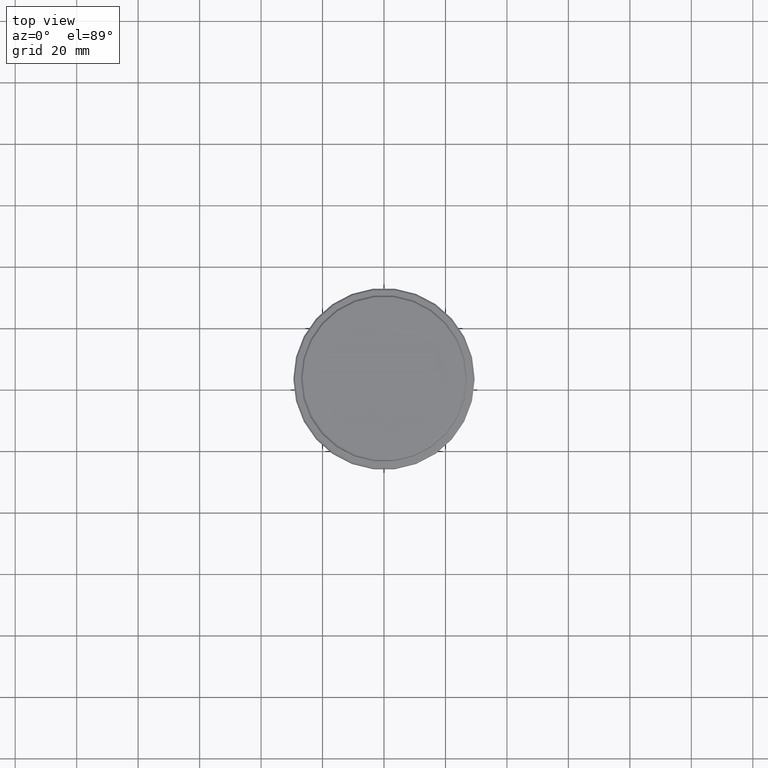
[diagram: clean part render]
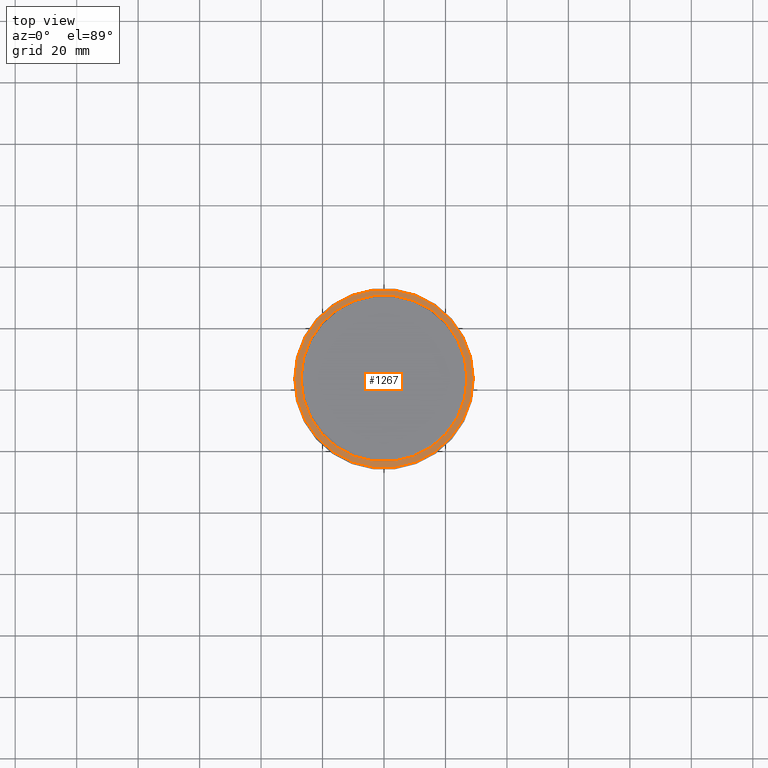
[diagram: same view with one face highlighted and labeled with its STEP entity id]
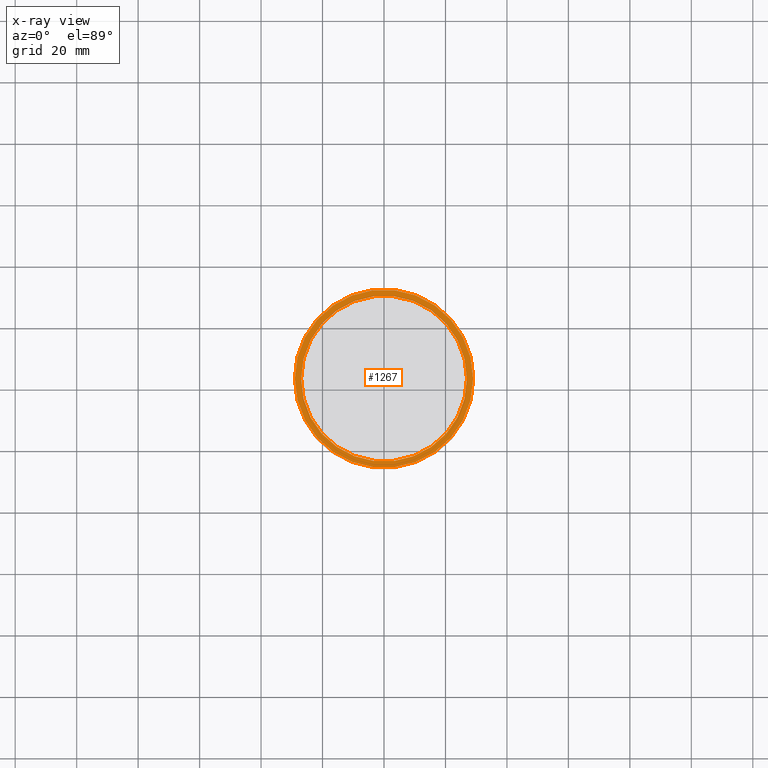
[diagram: x-ray of the same camera — body ghosted, the highlighted face saturated]
A machine part, top view. The second image highlights one B-rep face of the part: STEP entity #1267.
The next image is the same camera in x-ray: the body ghosted, the highlighted face saturated — about 0% of this face is hidden behind the body in this view.
In plain terms, the highlighted planar face has unit normal (0, -0, 1).
Its self-contained STEP definition (entity closure, byte-faithful):
#48 = EDGE_CURVE ( 'NONE', #1213, #739, #1127, .T. ) ;
#53 = CIRCLE ( 'NONE', #558, 28.99999999999999645 ) ;
#80 = DIRECTION ( 'NONE',  ( 0.000000000000000000, 0.000000000000000000, -1.000000000000000000 ) ) ;
#97 = CARTESIAN_POINT ( 'NONE',  ( 0.000000000000000000, 0.000000000000000000, -12.00000000000000355 ) ) ;
#141 = CARTESIAN_POINT ( 'NONE',  ( 0.000000000000000000, 26.49999999999999645, -12.00000000000000355 ) ) ;
#246 = CARTESIAN_POINT ( 'NONE',  ( 0.000000000000000000, 0.000000000000000000, -12.00000000000000355 ) ) ;
#313 = DIRECTION ( 'NONE',  ( 1.000000000000000000, 0.000000000000000000, 0.000000000000000000 ) ) ;
#339 = VERTEX_POINT ( 'NONE', #863 ) ;
#346 = CARTESIAN_POINT ( 'NONE',  ( 0.000000000000000000, 0.000000000000000000, -12.00000000000000355 ) ) ;
#447 = AXIS2_PLACEMENT_3D ( 'NONE', #141, #1111, #896 ) ;
#468 = PLANE ( 'NONE',  #447 ) ;
#475 = EDGE_CURVE ( 'NONE', #525, #339, #647, .T. ) ;
#525 = VERTEX_POINT ( 'NONE', #923 ) ;
#558 = AXIS2_PLACEMENT_3D ( 'NONE', #1345, #667, #1118 ) ;
#572 = DIRECTION ( 'NONE',  ( -0.000000000000000000, -0.000000000000000000, 1.000000000000000000 ) ) ;
#595 = ORIENTED_EDGE ( 'NONE', *, *, #1164, .T. ) ;
#647 = CIRCLE ( 'NONE', #1239, 28.99999999999999645 ) ;
#653 = ORIENTED_EDGE ( 'NONE', *, *, #475, .T. ) ;
#658 = FACE_BOUND ( 'NONE', #928, .T. ) ;
#667 = DIRECTION ( 'NONE',  ( -0.000000000000000000, -0.000000000000000000, 1.000000000000000000 ) ) ;
#739 = VERTEX_POINT ( 'NONE', #1165 ) ;
#823 = EDGE_CURVE ( 'NONE', #339, #525, #53, .T. ) ;
#860 = ORIENTED_EDGE ( 'NONE', *, *, #48, .T. ) ;
#863 = CARTESIAN_POINT ( 'NONE',  ( 28.99999999999999645, 3.582091887506007817E-15, -12.00000000000000355 ) ) ;
#883 = FACE_OUTER_BOUND ( 'NONE', #1073, .T. ) ;
#896 = DIRECTION ( 'NONE',  ( 1.000000000000000000, 0.000000000000000000, 0.000000000000000000 ) ) ;
#899 = AXIS2_PLACEMENT_3D ( 'NONE', #246, #1122, #1227 ) ;
#923 = CARTESIAN_POINT ( 'NONE',  ( -28.99999999999999645, 0.000000000000000000, -12.00000000000000355 ) ) ;
#928 = EDGE_LOOP ( 'NONE', ( #860, #595 ) ) ;
#971 = AXIS2_PLACEMENT_3D ( 'NONE', #97, #80, #313 ) ;
#999 = ORIENTED_EDGE ( 'NONE', *, *, #823, .T. ) ;
#1009 = DIRECTION ( 'NONE',  ( 1.000000000000000000, 0.000000000000000000, 0.000000000000000000 ) ) ;
#1073 = EDGE_LOOP ( 'NONE', ( #653, #999 ) ) ;
#1111 = DIRECTION ( 'NONE',  ( 0.000000000000000000, -0.000000000000000000, 1.000000000000000000 ) ) ;
#1118 = DIRECTION ( 'NONE',  ( 1.000000000000000000, 0.000000000000000000, 0.000000000000000000 ) ) ;
#1122 = DIRECTION ( 'NONE',  ( 0.000000000000000000, 0.000000000000000000, -1.000000000000000000 ) ) ;
#1127 = CIRCLE ( 'NONE', #899, 26.99999999999999645 ) ;
#1131 = CIRCLE ( 'NONE', #971, 26.99999999999999645 ) ;
#1164 = EDGE_CURVE ( 'NONE', #739, #1213, #1131, .T. ) ;
#1165 = CARTESIAN_POINT ( 'NONE',  ( -26.99999999999999645, 3.306546357697853339E-15, -12.00000000000000355 ) ) ;
#1186 = CARTESIAN_POINT ( 'NONE',  ( 26.99999999999999645, 0.000000000000000000, -12.00000000000000355 ) ) ;
#1213 = VERTEX_POINT ( 'NONE', #1186 ) ;
#1227 = DIRECTION ( 'NONE',  ( 1.000000000000000000, 0.000000000000000000, 0.000000000000000000 ) ) ;
#1239 = AXIS2_PLACEMENT_3D ( 'NONE', #346, #572, #1009 ) ;
#1267 = ADVANCED_FACE ( 'NONE', ( #883, #658 ), #468, .T. ) ;
#1345 = CARTESIAN_POINT ( 'NONE',  ( 0.000000000000000000, 0.000000000000000000, -12.00000000000000355 ) ) ;